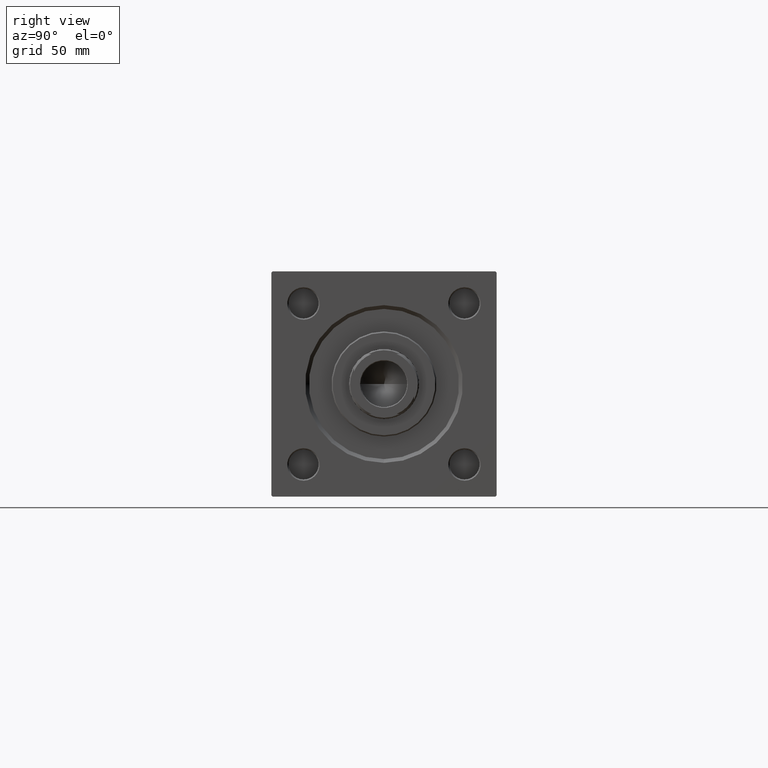
[diagram: clean part render]
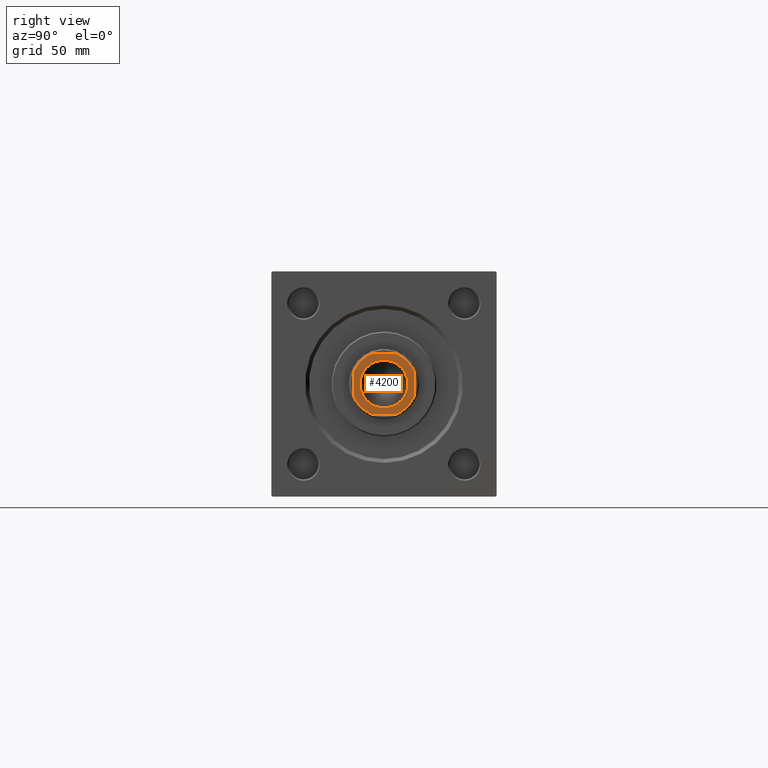
[diagram: same view with one face highlighted and labeled with its STEP entity id]
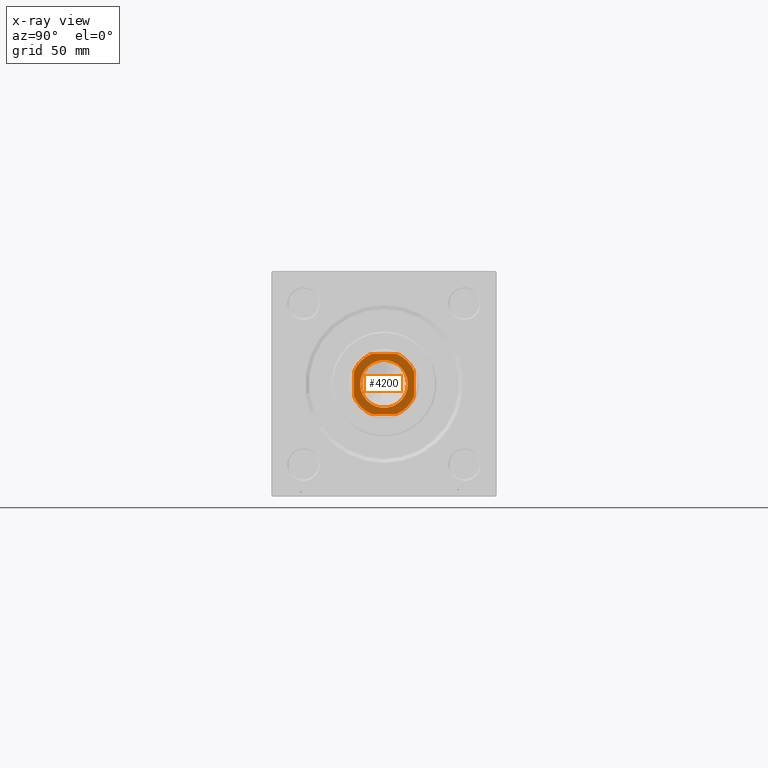
[diagram: x-ray of the same camera — body ghosted, the highlighted face saturated]
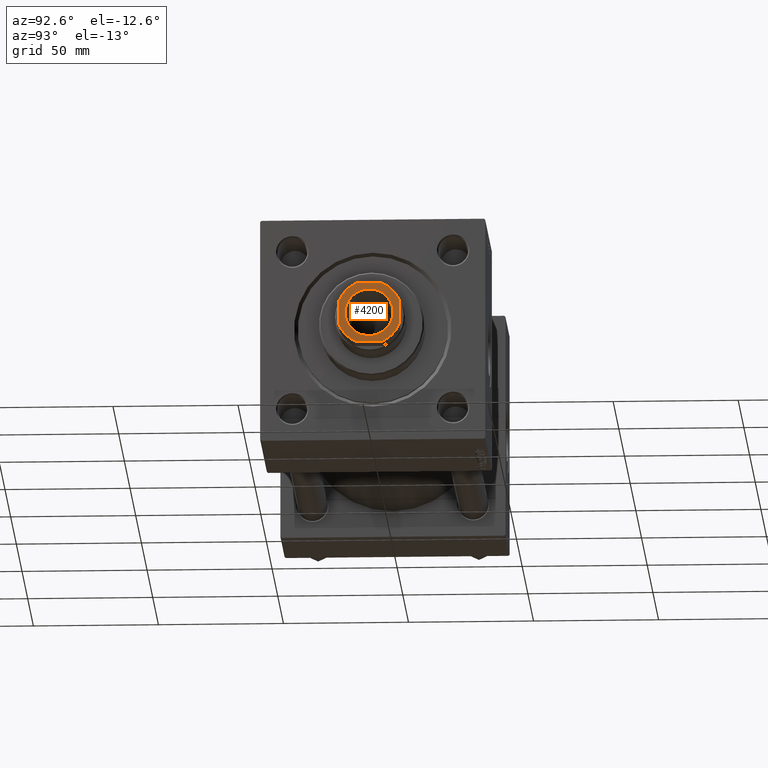
[diagram: same view with one face highlighted and labeled with its STEP entity id]
A machine part, right view. The second image highlights one B-rep face of the part: STEP entity #4200.
The next image is the same camera in x-ray: the body ghosted, the highlighted face saturated — about 0% of this face is hidden behind the body in this view.
A second angle (auxiliary view) of the same face is appended — the face is thin or edge-on in the first view.
In plain terms, the highlighted planar face has unit normal (1, 0, 0).
Its self-contained STEP definition (entity closure, byte-faithful):
#385 = LINE ( 'NONE', #47168, #8689 ) ;
#762 = AXIS2_PLACEMENT_3D ( 'NONE', #5577, #29197, #1671 ) ;
#1235 = ORIENTED_EDGE ( 'NONE', *, *, #5694, .T. ) ;
#1338 = EDGE_LOOP ( 'NONE', ( #15152, #40147 ) ) ;
#1671 = DIRECTION ( 'NONE',  ( 1.000000000000000000, 0.000000000000000000, 0.000000000000000000 ) ) ;
#1850 = EDGE_CURVE ( 'NONE', #22483, #3998, #16513, .T. ) ;
#2029 = CARTESIAN_POINT ( 'NONE',  ( -5.000000000000128786, -12.00000000000000355, 210.0000000000000284 ) ) ;
#2642 = VECTOR ( 'NONE', #38009, 1000.000000000000000 ) ;
#3592 = DIRECTION ( 'NONE',  ( 1.000000000000000000, 0.000000000000000000, 0.000000000000000000 ) ) ;
#3786 = DIRECTION ( 'NONE',  ( -1.000000000000000000, -0.000000000000000000, -0.000000000000000000 ) ) ;
#3934 = VERTEX_POINT ( 'NONE', #24400 ) ;
#3998 = VERTEX_POINT ( 'NONE', #25180 ) ;
#4088 = DIRECTION ( 'NONE',  ( 1.000000000000000000, 0.000000000000000000, 0.000000000000000000 ) ) ;
#4200 = ADVANCED_FACE ( 'NONE', ( #31106, #27721 ), #19423, .T. ) ;
#5575 = CARTESIAN_POINT ( 'NONE',  ( 11.99999999999999645, 11.99999999999999645, 210.0000000000000284 ) ) ;
#5577 = CARTESIAN_POINT ( 'NONE',  ( 0.000000000000000000, 0.000000000000000000, 210.0000000000000284 ) ) ;
#5694 = EDGE_CURVE ( 'NONE', #7178, #15128, #7398, .T. ) ;
#5753 = EDGE_CURVE ( 'NONE', #21092, #45343, #22327, .T. ) ;
#7146 = CARTESIAN_POINT ( 'NONE',  ( 0.000000000000000000, 0.000000000000000000, 210.0000000000000284 ) ) ;
#7178 = VERTEX_POINT ( 'NONE', #30176 ) ;
#7398 = CIRCLE ( 'NONE', #14835, 13.00000000000005329 ) ;
#7523 = LINE ( 'NONE', #23348, #7970 ) ;
#7678 = AXIS2_PLACEMENT_3D ( 'NONE', #8516, #8253, #3592 ) ;
#7970 = VECTOR ( 'NONE', #34282, 1000.000000000000000 ) ;
#8198 = AXIS2_PLACEMENT_3D ( 'NONE', #12562, #12040, #28400 ) ;
#8253 = DIRECTION ( 'NONE',  ( -0.000000000000000000, 0.000000000000000000, 1.000000000000000000 ) ) ;
#8516 = CARTESIAN_POINT ( 'NONE',  ( 0.000000000000000000, 0.000000000000000000, 210.0000000000000284 ) ) ;
#8689 = VECTOR ( 'NONE', #43004, 1000.000000000000000 ) ;
#11025 = CIRCLE ( 'NONE', #7678, 13.00000000000005329 ) ;
#11287 = DIRECTION ( 'NONE',  ( -0.000000000000000000, 0.000000000000000000, 1.000000000000000000 ) ) ;
#11878 = EDGE_CURVE ( 'NONE', #15128, #38607, #22163, .T. ) ;
#12040 = DIRECTION ( 'NONE',  ( -0.000000000000000000, 0.000000000000000000, 1.000000000000000000 ) ) ;
#12562 = CARTESIAN_POINT ( 'NONE',  ( 0.000000000000000000, 0.000000000000000000, 210.0000000000000284 ) ) ;
#14471 = EDGE_CURVE ( 'NONE', #15840, #24271, #11025, .T. ) ;
#14835 = AXIS2_PLACEMENT_3D ( 'NONE', #7146, #11287, #15181 ) ;
#15128 = VERTEX_POINT ( 'NONE', #44696 ) ;
#15152 = ORIENTED_EDGE ( 'NONE', *, *, #1850, .T. ) ;
#15181 = DIRECTION ( 'NONE',  ( 1.000000000000000000, 0.000000000000000000, 0.000000000000000000 ) ) ;
#15467 = DIRECTION ( 'NONE',  ( 1.000000000000000000, 0.000000000000000000, 0.000000000000000000 ) ) ;
#15570 = EDGE_CURVE ( 'NONE', #3934, #21092, #18862, .T. ) ;
#15840 = VERTEX_POINT ( 'NONE', #47125 ) ;
#16513 = CIRCLE ( 'NONE', #762, 9.549999999999975842 ) ;
#16714 = ORIENTED_EDGE ( 'NONE', *, *, #5753, .T. ) ;
#17549 = DIRECTION ( 'NONE',  ( 1.000000000000000000, 0.000000000000000000, 0.000000000000000000 ) ) ;
#18862 = LINE ( 'NONE', #47184, #39240 ) ;
#19423 = PLANE ( 'NONE',  #36370 ) ;
#19870 = ORIENTED_EDGE ( 'NONE', *, *, #22546, .T. ) ;
#21092 = VERTEX_POINT ( 'NONE', #41146 ) ;
#22163 = LINE ( 'NONE', #5575, #2642 ) ;
#22327 = CIRCLE ( 'NONE', #8198, 13.00000000000008171 ) ;
#22483 = VERTEX_POINT ( 'NONE', #23748 ) ;
#22546 = EDGE_CURVE ( 'NONE', #45343, #15840, #385, .T. ) ;
#23348 = CARTESIAN_POINT ( 'NONE',  ( -11.99999999999999822, -12.00000000000000355, 210.0000000000000284 ) ) ;
#23748 = CARTESIAN_POINT ( 'NONE',  ( 9.549999999999975842, 0.000000000000000000, 210.0000000000000284 ) ) ;
#24271 = VERTEX_POINT ( 'NONE', #2029 ) ;
#24400 = CARTESIAN_POINT ( 'NONE',  ( 5.000000000000119016, 11.99999999999999645, 210.0000000000000284 ) ) ;
#25180 = CARTESIAN_POINT ( 'NONE',  ( -9.549999999999975842, 1.169537693185719205E-15, 210.0000000000000284 ) ) ;
#26637 = DIRECTION ( 'NONE',  ( -0.000000000000000000, 0.000000000000000000, 1.000000000000000000 ) ) ;
#26751 = EDGE_CURVE ( 'NONE', #24271, #7178, #7523, .T. ) ;
#27640 = ORIENTED_EDGE ( 'NONE', *, *, #15570, .T. ) ;
#27721 = FACE_OUTER_BOUND ( 'NONE', #50948, .T. ) ;
#28400 = DIRECTION ( 'NONE',  ( 1.000000000000000000, 0.000000000000000000, 0.000000000000000000 ) ) ;
#29197 = DIRECTION ( 'NONE',  ( 0.000000000000000000, -0.000000000000000000, -1.000000000000000000 ) ) ;
#30176 = CARTESIAN_POINT ( 'NONE',  ( 5.000000000000128786, -12.00000000000000355, 210.0000000000000284 ) ) ;
#31106 = FACE_BOUND ( 'NONE', #1338, .T. ) ;
#34282 = DIRECTION ( 'NONE',  ( 1.000000000000000000, 0.000000000000000000, 0.000000000000000000 ) ) ;
#34755 = DIRECTION ( 'NONE',  ( -0.000000000000000000, 0.000000000000000000, 1.000000000000000000 ) ) ;
#35274 = ORIENTED_EDGE ( 'NONE', *, *, #11878, .T. ) ;
#35467 = EDGE_CURVE ( 'NONE', #3998, #22483, #48103, .T. ) ;
#35833 = ORIENTED_EDGE ( 'NONE', *, *, #14471, .T. ) ;
#36370 = AXIS2_PLACEMENT_3D ( 'NONE', #43583, #34755, #4088 ) ;
#36469 = AXIS2_PLACEMENT_3D ( 'NONE', #37020, #40680, #17549 ) ;
#37020 = CARTESIAN_POINT ( 'NONE',  ( 0.000000000000000000, 0.000000000000000000, 210.0000000000000284 ) ) ;
#38009 = DIRECTION ( 'NONE',  ( -2.891205793294678326E-16, 1.000000000000000000, -0.000000000000000000 ) ) ;
#38607 = VERTEX_POINT ( 'NONE', #43356 ) ;
#39240 = VECTOR ( 'NONE', #3786, 1000.000000000000000 ) ;
#40147 = ORIENTED_EDGE ( 'NONE', *, *, #35467, .T. ) ;
#40196 = CIRCLE ( 'NONE', #46838, 13.00000000000004263 ) ;
#40680 = DIRECTION ( 'NONE',  ( 0.000000000000000000, -0.000000000000000000, -1.000000000000000000 ) ) ;
#41146 = CARTESIAN_POINT ( 'NONE',  ( -5.000000000000217604, 11.99999999999999645, 210.0000000000000284 ) ) ;
#43004 = DIRECTION ( 'NONE',  ( 7.228014483236695816E-17, -1.000000000000000000, 0.000000000000000000 ) ) ;
#43356 = CARTESIAN_POINT ( 'NONE',  ( 11.99999999999999822, 5.000000000000112799, 210.0000000000000284 ) ) ;
#43583 = CARTESIAN_POINT ( 'NONE',  ( 0.000000000000000000, 0.000000000000000000, 210.0000000000000284 ) ) ;
#44478 = CARTESIAN_POINT ( 'NONE',  ( -12.00000000000000000, 5.000000000000209610, 210.0000000000000284 ) ) ;
#44696 = CARTESIAN_POINT ( 'NONE',  ( 12.00000000000000178, -5.000000000000133227, 210.0000000000000284 ) ) ;
#45343 = VERTEX_POINT ( 'NONE', #44478 ) ;
#45433 = ORIENTED_EDGE ( 'NONE', *, *, #26751, .T. ) ;
#46157 = CARTESIAN_POINT ( 'NONE',  ( 0.000000000000000000, 0.000000000000000000, 210.0000000000000284 ) ) ;
#46838 = AXIS2_PLACEMENT_3D ( 'NONE', #46157, #26637, #15467 ) ;
#46982 = ORIENTED_EDGE ( 'NONE', *, *, #49428, .T. ) ;
#47125 = CARTESIAN_POINT ( 'NONE',  ( -12.00000000000000000, -5.000000000000136779, 210.0000000000000284 ) ) ;
#47168 = CARTESIAN_POINT ( 'NONE',  ( -12.00000000000000000, 11.99999999999999645, 210.0000000000000284 ) ) ;
#47184 = CARTESIAN_POINT ( 'NONE',  ( -12.00000000000000000, 11.99999999999999645, 210.0000000000000284 ) ) ;
#48103 = CIRCLE ( 'NONE', #36469, 9.549999999999975842 ) ;
#49428 = EDGE_CURVE ( 'NONE', #38607, #3934, #40196, .T. ) ;
#50948 = EDGE_LOOP ( 'NONE', ( #35274, #46982, #27640, #16714, #19870, #35833, #45433, #1235 ) ) ;